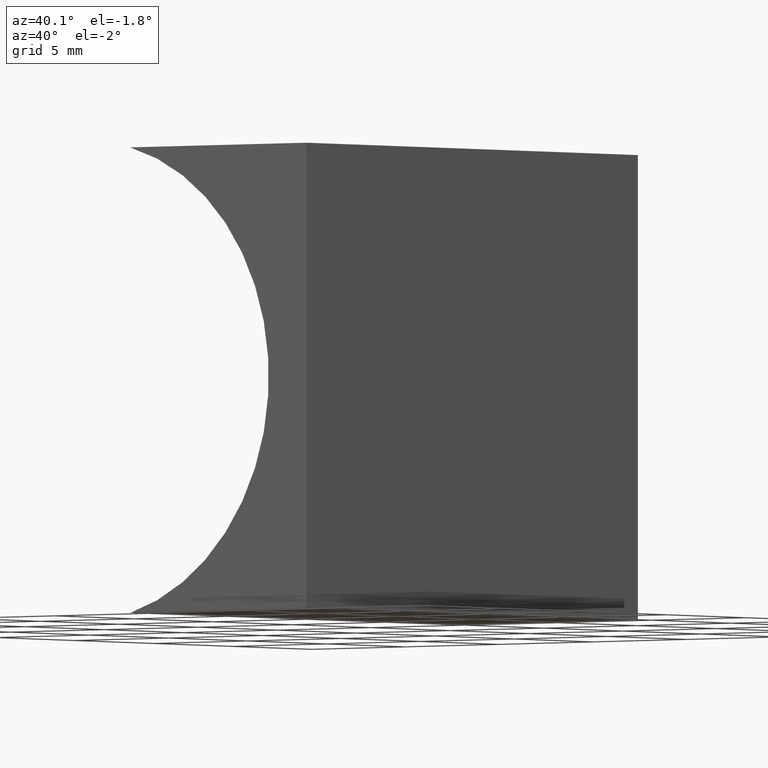
[diagram: clean part render]
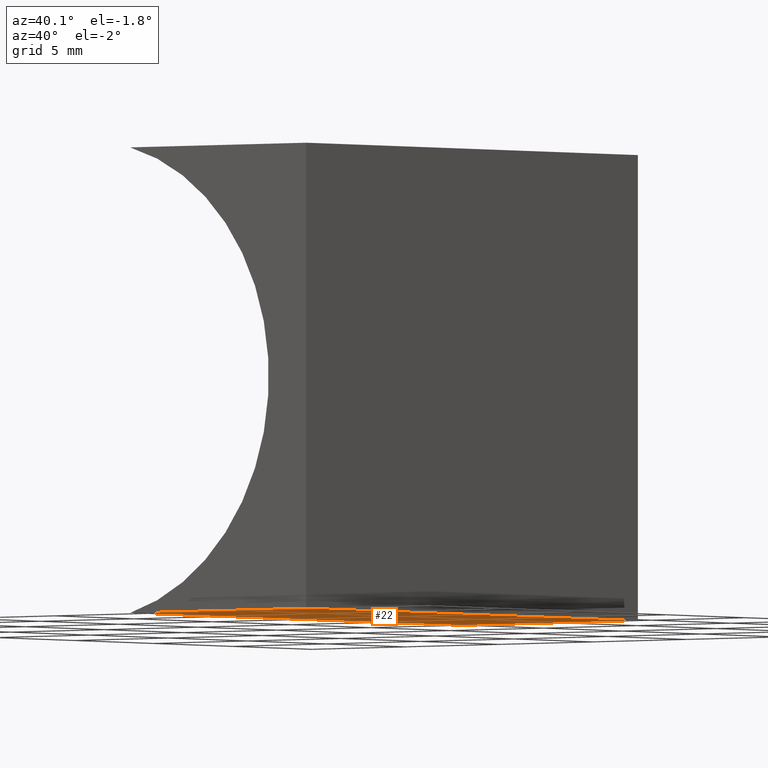
[diagram: same view with one face highlighted and labeled with its STEP entity id]
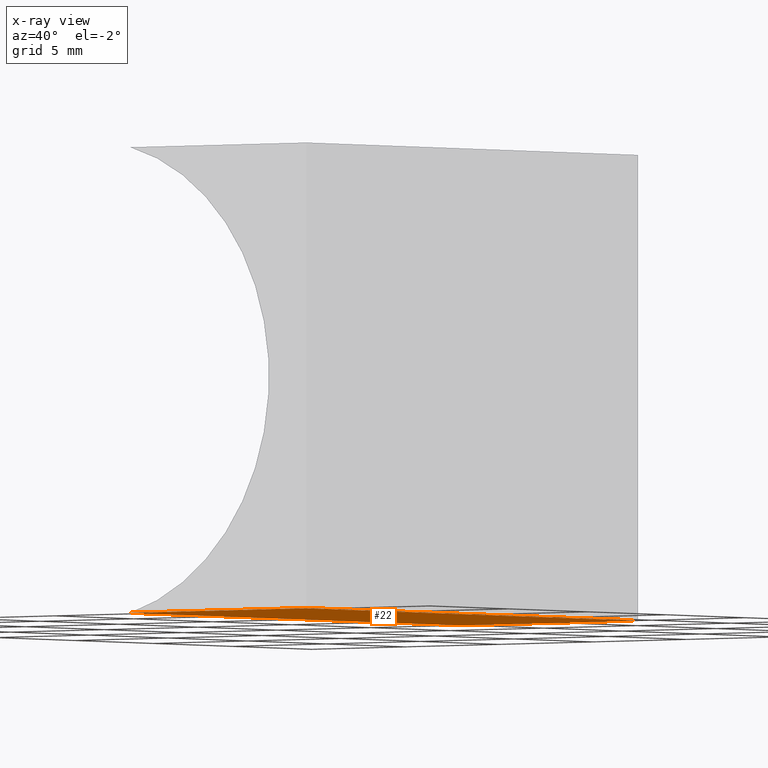
[diagram: x-ray of the same camera — body ghosted, the highlighted face saturated]
A machine part, auxiliary view. The second image highlights one B-rep face of the part: STEP entity #22.
The next image is the same camera in x-ray: the body ghosted, the highlighted face saturated — about 0% of this face is hidden behind the body in this view.
In plain terms, the highlighted planar face has unit normal (0, -0, 1).
Its self-contained STEP definition (entity closure, byte-faithful):
#4 = CARTESIAN_POINT ( 'NONE',  ( 0.0000000000000000000, 0.0000000000000000000, 0.0000000000000000000 ) ) ;
#6 = FACE_OUTER_BOUND ( 'NONE', #190, .T. ) ;
#11 = DIRECTION ( 'NONE',  ( 1.000000000000000000, 0.0000000000000000000, -0.0000000000000000000 ) ) ;
#22 = ADVANCED_FACE ( 'NONE', ( #6 ), #46, .F. ) ;
#27 = VECTOR ( 'NONE', #125, 1000.000000000000000 ) ;
#29 = ORIENTED_EDGE ( 'NONE', *, *, #143, .F. ) ;
#38 = ORIENTED_EDGE ( 'NONE', *, *, #174, .T. ) ;
#46 = PLANE ( 'NONE',  #167 ) ;
#47 = EDGE_CURVE ( 'NONE', #160, #63, #74, .T. ) ;
#48 = CARTESIAN_POINT ( 'NONE',  ( 0.0000000000000000000, 21.00000000000000000, 0.0000000000000000000 ) ) ;
#53 = VERTEX_POINT ( 'NONE', #88 ) ;
#54 = CARTESIAN_POINT ( 'NONE',  ( -9.393758116896808700, 0.0000000000000000000, 1.734723475976807100E-015 ) ) ;
#58 = VERTEX_POINT ( 'NONE', #198 ) ;
#63 = VERTEX_POINT ( 'NONE', #54 ) ;
#69 = DIRECTION ( 'NONE',  ( -0.0000000000000000000, -1.000000000000000000, -0.0000000000000000000 ) ) ;
#74 = LINE ( 'NONE', #87, #186 ) ;
#87 = CARTESIAN_POINT ( 'NONE',  ( 0.0000000000000000000, 0.0000000000000000000, 0.0000000000000000000 ) ) ;
#88 = CARTESIAN_POINT ( 'NONE',  ( 0.0000000000000000000, 21.00000000000000000, 0.0000000000000000000 ) ) ;
#90 = DIRECTION ( 'NONE',  ( -1.000000000000000000, 0.0000000000000000000, 0.0000000000000000000 ) ) ;
#98 = LINE ( 'NONE', #48, #146 ) ;
#103 = VECTOR ( 'NONE', #135, 1000.000000000000000 ) ;
#105 = CARTESIAN_POINT ( 'NONE',  ( 0.0000000000000000000, 21.00000000000000000, 0.0000000000000000000 ) ) ;
#106 = LINE ( 'NONE', #201, #103 ) ;
#113 = LINE ( 'NONE', #181, #27 ) ;
#121 = ORIENTED_EDGE ( 'NONE', *, *, #139, .F. ) ;
#125 = DIRECTION ( 'NONE',  ( -1.000000000000000000, 0.0000000000000000000, 0.0000000000000000000 ) ) ;
#135 = DIRECTION ( 'NONE',  ( -0.0000000000000000000, -1.000000000000000000, -0.0000000000000000000 ) ) ;
#139 = EDGE_CURVE ( 'NONE', #53, #58, #113, .T. ) ;
#143 = EDGE_CURVE ( 'NONE', #58, #63, #106, .T. ) ;
#146 = VECTOR ( 'NONE', #69, 1000.000000000000000 ) ;
#160 = VERTEX_POINT ( 'NONE', #4 ) ;
#167 = AXIS2_PLACEMENT_3D ( 'NONE', #105, #172, #11 ) ;
#172 = DIRECTION ( 'NONE',  ( 0.0000000000000000000, -0.0000000000000000000, 1.000000000000000000 ) ) ;
#174 = EDGE_CURVE ( 'NONE', #53, #160, #98, .T. ) ;
#181 = CARTESIAN_POINT ( 'NONE',  ( 0.0000000000000000000, 21.00000000000000000, 0.0000000000000000000 ) ) ;
#186 = VECTOR ( 'NONE', #90, 1000.000000000000000 ) ;
#190 = EDGE_LOOP ( 'NONE', ( #202, #29, #121, #38 ) ) ;
#198 = CARTESIAN_POINT ( 'NONE',  ( -9.393758116896808700, 21.00000000000000000, 1.734723475976807100E-015 ) ) ;
#201 = CARTESIAN_POINT ( 'NONE',  ( -9.393758116896808700, 21.00000000000000000, 1.734723475976807100E-015 ) ) ;
#202 = ORIENTED_EDGE ( 'NONE', *, *, #47, .T. ) ;